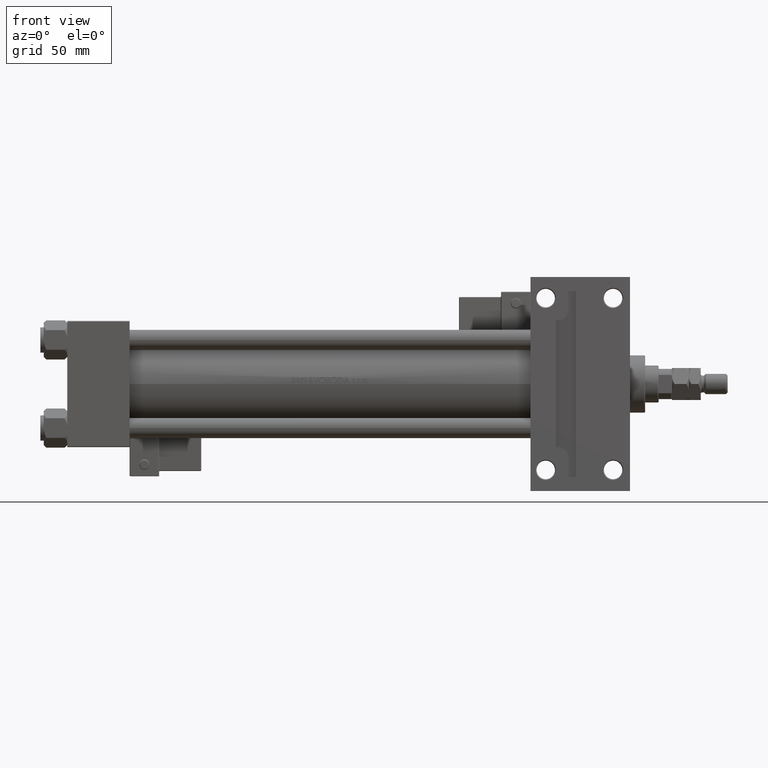
[diagram: clean part render]
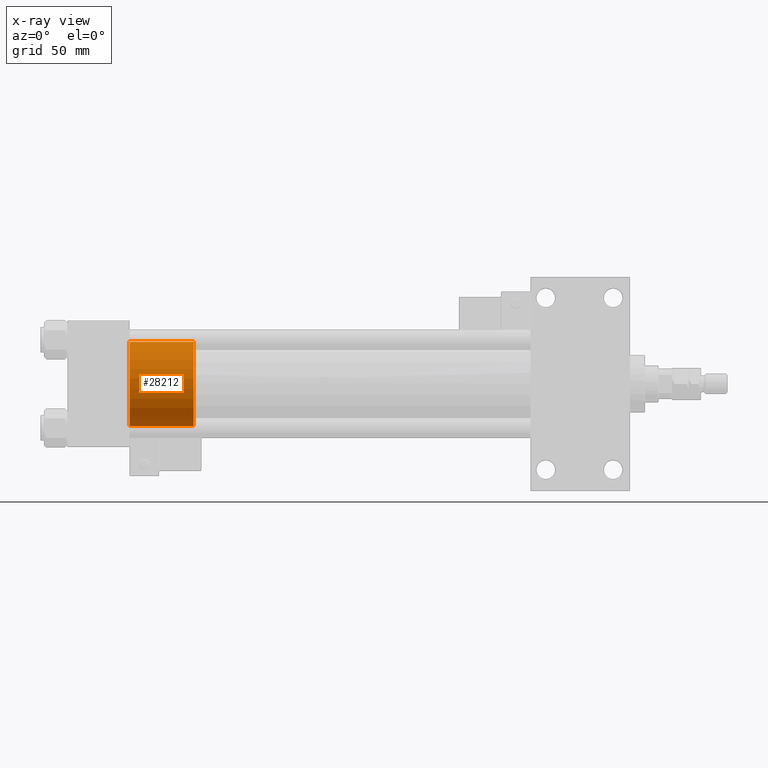
[diagram: x-ray — body ghosted, one internal face saturated and labeled with its STEP entity id]
A machine part, front view, then the same camera in x-ray: the body is ghosted and one INTERNAL B-rep face — a face not visible from any outside direction — is saturated and labeled: STEP entity #28212.
In plain terms, the highlighted cylindrical surface (partial cylindrical patch) has radius 25 mm, axis along (-1, 0, 0).
Its self-contained STEP definition (entity closure, byte-faithful):
#168 = CARTESIAN_POINT ( 'NONE',  ( -25.00000000000000000, 0.000000000000000000, 38.00000000000000000 ) ) ;
#856 = ORIENTED_EDGE ( 'NONE', *, *, #42959, .T. ) ;
#945 = DIRECTION ( 'NONE',  ( -0.000000000000000000, -0.000000000000000000, -1.000000000000000000 ) ) ;
#2903 = FACE_OUTER_BOUND ( 'NONE', #3733, .T. ) ;
#2937 = VERTEX_POINT ( 'NONE', #168 ) ;
#3733 = EDGE_LOOP ( 'NONE', ( #27105, #856, #38191, #33779 ) ) ;
#4699 = VERTEX_POINT ( 'NONE', #46802 ) ;
#8241 = CIRCLE ( 'NONE', #21524, 25.00000000000000000 ) ;
#10891 = VERTEX_POINT ( 'NONE', #20037 ) ;
#12546 = EDGE_CURVE ( 'NONE', #26106, #10891, #46620, .T. ) ;
#14651 = CARTESIAN_POINT ( 'NONE',  ( 0.000000000000000000, 0.000000000000000000, 38.00000000000000000 ) ) ;
#15380 = CYLINDRICAL_SURFACE ( 'NONE', #25739, 25.00000000000000000 ) ;
#16285 = VECTOR ( 'NONE', #27086, 1000.000000000000000 ) ;
#18462 = CARTESIAN_POINT ( 'NONE',  ( 25.00000000000000000, 3.061616997868383043E-15, 0.000000000000000000 ) ) ;
#19563 = EDGE_CURVE ( 'NONE', #2937, #10891, #43964, .T. ) ;
#20037 = CARTESIAN_POINT ( 'NONE',  ( -25.00000000000000000, 0.000000000000000000, 0.000000000000000000 ) ) ;
#21524 = AXIS2_PLACEMENT_3D ( 'NONE', #14651, #30515, #46369 ) ;
#25739 = AXIS2_PLACEMENT_3D ( 'NONE', #31225, #43167, #51237 ) ;
#26106 = VERTEX_POINT ( 'NONE', #18462 ) ;
#26286 = VECTOR ( 'NONE', #945, 1000.000000000000000 ) ;
#27086 = DIRECTION ( 'NONE',  ( -0.000000000000000000, -0.000000000000000000, -1.000000000000000000 ) ) ;
#27105 = ORIENTED_EDGE ( 'NONE', *, *, #47929, .F. ) ;
#28212 = ADVANCED_FACE ( 'NONE', ( #2903 ), #15380, .T. ) ;
#30239 = DIRECTION ( 'NONE',  ( 1.000000000000000000, 0.000000000000000000, 0.000000000000000000 ) ) ;
#30502 = DIRECTION ( 'NONE',  ( 0.000000000000000000, 0.000000000000000000, 1.000000000000000000 ) ) ;
#30515 = DIRECTION ( 'NONE',  ( 0.000000000000000000, 0.000000000000000000, 1.000000000000000000 ) ) ;
#31225 = CARTESIAN_POINT ( 'NONE',  ( 0.000000000000000000, 0.000000000000000000, 38.00000000000000000 ) ) ;
#32644 = CARTESIAN_POINT ( 'NONE',  ( 25.00000000000000000, 3.061616997868383043E-15, 38.00000000000000000 ) ) ;
#33779 = ORIENTED_EDGE ( 'NONE', *, *, #19563, .F. ) ;
#34914 = CARTESIAN_POINT ( 'NONE',  ( 0.000000000000000000, 0.000000000000000000, 0.000000000000000000 ) ) ;
#37056 = LINE ( 'NONE', #32644, #26286 ) ;
#38191 = ORIENTED_EDGE ( 'NONE', *, *, #12546, .T. ) ;
#39810 = CARTESIAN_POINT ( 'NONE',  ( -25.00000000000000000, 0.000000000000000000, 38.00000000000000000 ) ) ;
#40801 = AXIS2_PLACEMENT_3D ( 'NONE', #34914, #30502, #30239 ) ;
#42959 = EDGE_CURVE ( 'NONE', #4699, #26106, #37056, .T. ) ;
#43167 = DIRECTION ( 'NONE',  ( -0.000000000000000000, -0.000000000000000000, -1.000000000000000000 ) ) ;
#43964 = LINE ( 'NONE', #39810, #16285 ) ;
#46369 = DIRECTION ( 'NONE',  ( 1.000000000000000000, 0.000000000000000000, 0.000000000000000000 ) ) ;
#46620 = CIRCLE ( 'NONE', #40801, 25.00000000000000000 ) ;
#46802 = CARTESIAN_POINT ( 'NONE',  ( 25.00000000000000000, 3.061616997868383043E-15, 38.00000000000000000 ) ) ;
#47929 = EDGE_CURVE ( 'NONE', #4699, #2937, #8241, .T. ) ;
#51237 = DIRECTION ( 'NONE',  ( -1.000000000000000000, 0.000000000000000000, 0.000000000000000000 ) ) ;